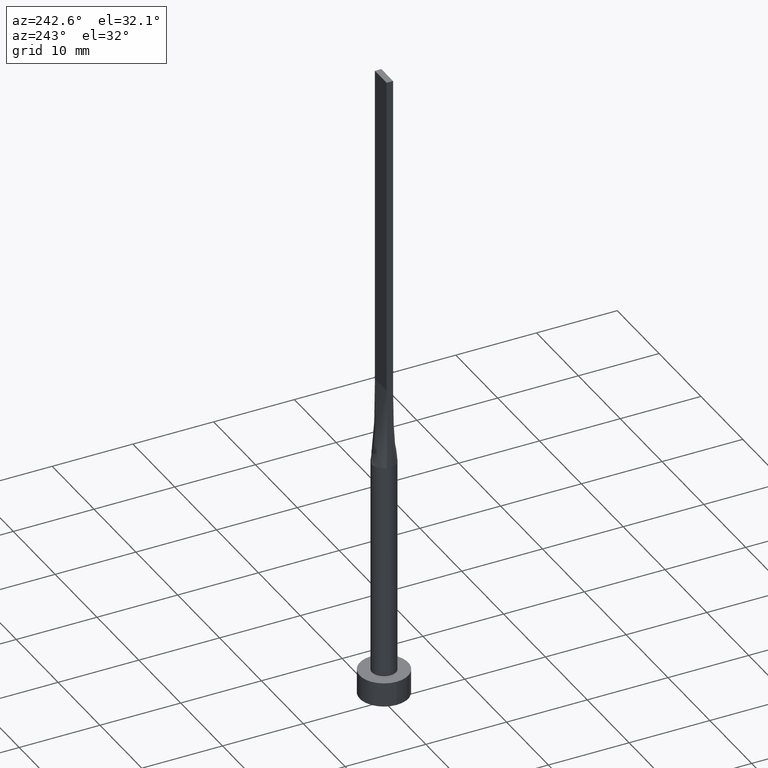
[diagram: clean part render]
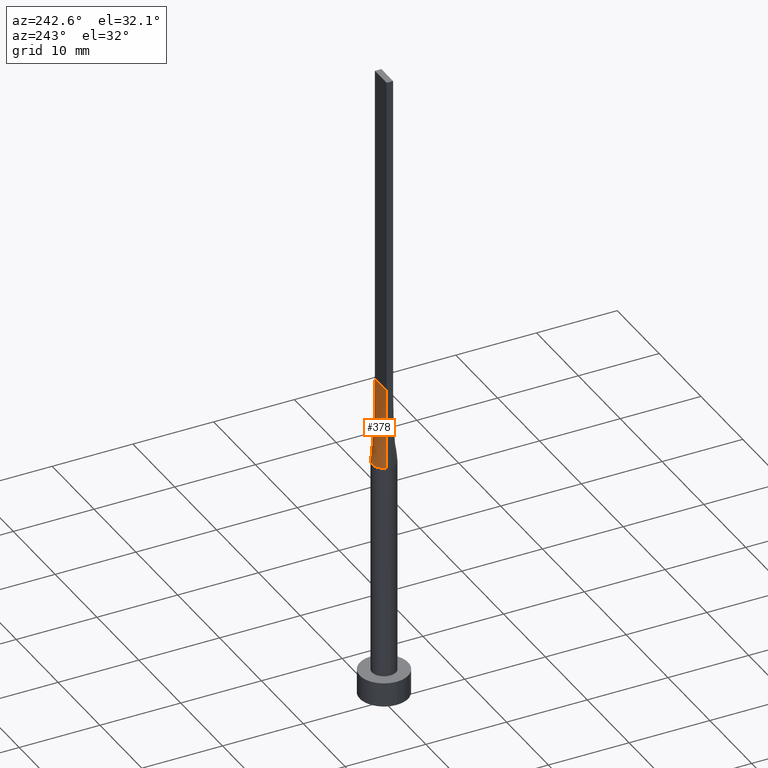
[diagram: same view with one face highlighted and labeled with its STEP entity id]
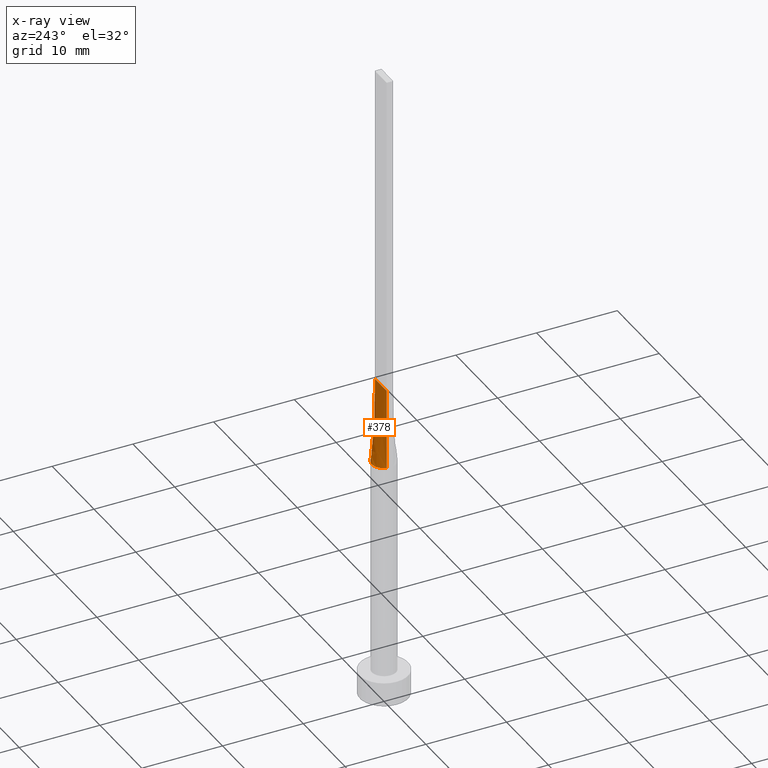
[diagram: x-ray of the same camera — body ghosted, the highlighted face saturated]
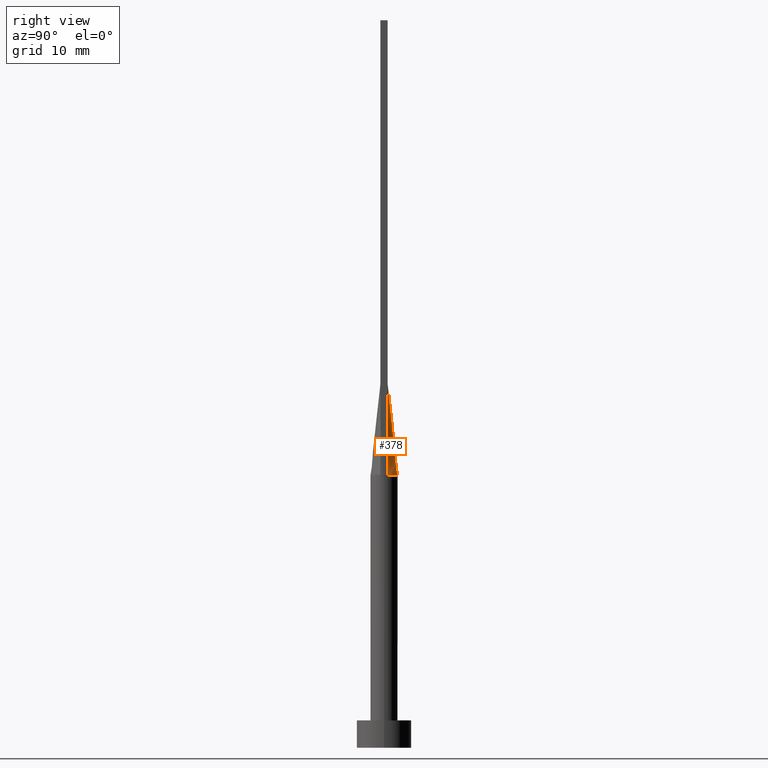
[diagram: same view with one face highlighted and labeled with its STEP entity id]
A machine part, auxiliary view. The second image highlights one B-rep face of the part: STEP entity #378.
The next image is the same camera in x-ray: the body ghosted, the highlighted face saturated — about 0% of this face is hidden behind the body in this view.
A second angle (right view) of the same face is appended — the face is thin or edge-on in the first view.
In plain terms, the highlighted face is a freeform B-spline surface patch.
Its self-contained STEP definition (entity closure, byte-faithful):
#2 = CARTESIAN_POINT ( 'NONE',  ( -1.421142960730617189, 0.4060408459230336331, 35.00000000000000000 ) ) ;
#18 = LINE ( 'NONE', #427, #317 ) ;
#21 = CARTESIAN_POINT ( 'NONE',  ( 0.5833333333333330373, 0.4000000000000001887, 39.99999999999999289 ) ) ;
#24 = CARTESIAN_POINT ( 'NONE',  ( 1.442285921461234910, 0.4120816918460671330, 30.00000000000000000 ) ) ;
#26 = CARTESIAN_POINT ( 'NONE',  ( -1.442387148345315895, 0.4121110244020492197, 30.00000000000000000 ) ) ;
#27 = FACE_OUTER_BOUND ( 'NONE', #491, .T. ) ;
#31 = EDGE_CURVE ( 'NONE', #308, #182, #261, .T. ) ;
#33 = CARTESIAN_POINT ( 'NONE',  ( -0.3767059690781846548, 1.463302066271692015, 30.00000000000000000 ) ) ;
#35 = CARTESIAN_POINT ( 'NONE',  ( 0.1885753531885901724, 1.500000000000000666, 30.00000000000000711 ) ) ;
#60 = CARTESIAN_POINT ( 'NONE',  ( 0.3767059690781852654, 1.463302066271692015, 30.00000000000000000 ) ) ;
#67 = CARTESIAN_POINT ( 'NONE',  ( -0.7158926189626803049, 1.330660769095148410, 30.00000000000000355 ) ) ;
#77 = CARTESIAN_POINT ( 'NONE',  ( -0.7158926189626803049, 1.330660769095148410, 30.00000000000000355 ) ) ;
#89 = ORIENTED_EDGE ( 'NONE', *, *, #107, .F. ) ;
#104 = ORIENTED_EDGE ( 'NONE', *, *, #31, .T. ) ;
#105 = CARTESIAN_POINT ( 'NONE',  ( 1.166666666666666075, 0.4000000000000001332, 39.99999999999999289 ) ) ;
#107 = EDGE_CURVE ( 'NONE', #308, #487, #382, .T. ) ;
#108 = CARTESIAN_POINT ( 'NONE',  ( 1.283333333333332993, 0.4000000000000001887, 39.99999999999999289 ) ) ;
#109 = CARTESIAN_POINT ( 'NONE',  ( 1.399999999999999689, 0.4000000000000002442, 40.00000000000000000 ) ) ;
#110 = CARTESIAN_POINT ( 'NONE',  ( -0.3767059690781846548, 1.463302066271692015, 30.00000000000000000 ) ) ;
#124 = CARTESIAN_POINT ( 'NONE',  ( 1.212111761082483197, 0.8950936653899574935, 30.00000000000000711 ) ) ;
#149 = LINE ( 'NONE', #2, #532 ) ;
#153 = CARTESIAN_POINT ( 'NONE',  ( -0.5833333333333332593, 0.4000000000000001887, 39.99999999999999289 ) ) ;
#156 = CARTESIAN_POINT ( 'NONE',  ( -0.1166666666666663771, 0.4000000000000001887, 39.99999999999999289 ) ) ;
#163 = CARTESIAN_POINT ( 'NONE',  ( -1.359280768448767329, 0.6502025712814717417, 30.00000000000001066 ) ) ;
#177 = DIRECTION ( 'NONE',  ( 0.004228551254826029733, -0.001208157501378838471, 0.9999903298081123104 ) ) ;
#182 = VERTEX_POINT ( 'NONE', #324 ) ;
#192 = CARTESIAN_POINT ( 'NONE',  ( -1.359280768448767329, 0.6502025712814717417, 30.00000000000001066 ) ) ;
#194 = CARTESIAN_POINT ( 'NONE',  ( 0.1166666666666670016, 0.4000000000000001887, 39.99999999999999289 ) ) ;
#204 = DIRECTION ( 'NONE',  ( -1.000000000000000000, -0.000000000000000000, -0.000000000000000000 ) ) ;
#218 = CARTESIAN_POINT ( 'NONE',  ( 1.409267053536706671, 0.5276477295819161917, 30.00000000000000000 ) ) ;
#221 = CARTESIAN_POINT ( 'NONE',  ( -1.166666666666666519, 0.4000000000000002442, 39.99999999999999289 ) ) ;
#224 = CARTESIAN_POINT ( 'NONE',  ( -1.409267053536706671, 0.5276477295819163027, 30.00000000000000711 ) ) ;
#228 = CARTESIAN_POINT ( 'NONE',  ( -1.283333333333333215, 0.4000000000000002442, 39.99999999999999289 ) ) ;
#229 = CARTESIAN_POINT ( 'NONE',  ( 1.442362338805188937, 0.4121038472597355895, 30.00000000000000000 ) ) ;
#235 = VECTOR ( 'NONE', #564, 1000.000000000000000 ) ;
#239 = CARTESIAN_POINT ( 'NONE',  ( 1.359280768448766663, 0.6502025712814714087, 29.99999999999999289 ) ) ;
#241 = B_SPLINE_SURFACE_WITH_KNOTS ( 'NONE', 3, 1, ( 
 ( #24, #384 ),
 ( #472, #108 ),
 ( #239, #105 ),
 ( #559, #286 ),
 ( #562, #425 ),
 ( #468, #21 ),
 ( #337, #290 ),
 ( #60, #335 ),
 ( #515, #194 ),
 ( #379, #156 ),
 ( #110, #512 ),
 ( #67, #555 ),
 ( #422, #153 ),
 ( #246, #415 ),
 ( #276, #318 ),
 ( #192, #221 ),
 ( #224, #228 ),
 ( #551, #497 ) ),
 .UNSPECIFIED., .F., .F., .F.,
 ( 4, 2, 2, 2, 2, 2, 2, 2, 4 ),
 ( 2, 2 ),
 ( 0.000000000000000000, 0.1250000000000000833, 0.2500000000000001665, 0.3750000000000001110, 0.5000000000000001110, 0.6250000000000002220, 0.7500000000000001110, 0.8750000000000001110, 1.000000000000000000 ),
 ( 0.000000000000000000, 1.000000000000000000 ),
 .UNSPECIFIED. ) ;
#246 = CARTESIAN_POINT ( 'NONE',  ( -1.114527776139989212, 1.017390422009414319, 30.00000000000000000 ) ) ;
#255 = CARTESIAN_POINT ( 'NONE',  ( -0.8665786268839184014, 1.235433898681765896, 30.00000000000000355 ) ) ;
#259 = CARTESIAN_POINT ( 'NONE',  ( -1.409267053536706671, 0.5276477295819163027, 30.00000000000000711 ) ) ;
#261 = B_SPLINE_CURVE_WITH_KNOTS ( 'NONE', 3,
 ( #229, #218, #400, #124, #482, #346, #433, #391, #35, #297, #33, #77, #255, #521, #529, #163, #259, #26 ),
 .UNSPECIFIED., .F., .F.,
 ( 4, 2, 2, 2, 2, 2, 2, 2, 4 ),
 ( 0.000000000000000000, 0.1250000000000000833, 0.2500000000000001665, 0.3750000000000001110, 0.5000000000000001110, 0.6250000000000002220, 0.7500000000000001110, 0.8750000000000001110, 1.000000000000000000 ),
 .UNSPECIFIED. ) ;
#276 = CARTESIAN_POINT ( 'NONE',  ( -1.212111761082482975, 0.8950936653899578266, 30.00000000000000355 ) ) ;
#286 = CARTESIAN_POINT ( 'NONE',  ( 0.9333333333333329040, 0.4000000000000001332, 39.99999999999999289 ) ) ;
#290 = CARTESIAN_POINT ( 'NONE',  ( 0.4666666666666665630, 0.4000000000000001887, 39.99999999999999289 ) ) ;
#297 = CARTESIAN_POINT ( 'NONE',  ( -0.1885753531885899226, 1.500000000000000888, 30.00000000000000711 ) ) ;
#302 = CARTESIAN_POINT ( 'NONE',  ( 1.421142960730617189, 0.4060408459230337996, 35.00000000000000000 ) ) ;
#308 = VERTEX_POINT ( 'NONE', #359 ) ;
#317 = VECTOR ( 'NONE', #204, 1000.000000000000000 ) ;
#318 = CARTESIAN_POINT ( 'NONE',  ( -0.9333333333333331261, 0.4000000000000001887, 39.99999999999999289 ) ) ;
#324 = CARTESIAN_POINT ( 'NONE',  ( -1.442387148345315895, 0.4121110244020492197, 30.00000000000000000 ) ) ;
#335 = CARTESIAN_POINT ( 'NONE',  ( 0.2333333333333335313, 0.4000000000000001887, 39.99999999999999289 ) ) ;
#337 = CARTESIAN_POINT ( 'NONE',  ( 0.7158926189626808601, 1.330660769095147966, 29.99999999999999645 ) ) ;
#342 = EDGE_CURVE ( 'NONE', #487, #412, #18, .T. ) ;
#346 = CARTESIAN_POINT ( 'NONE',  ( 0.8665786268839186235, 1.235433898681765008, 29.99999999999999289 ) ) ;
#357 = CARTESIAN_POINT ( 'NONE',  ( -1.399999999999999689, 0.4000000000000002442, 40.00000000000000000 ) ) ;
#359 = CARTESIAN_POINT ( 'NONE',  ( 1.442362338805188937, 0.4121038472597355895, 30.00000000000000000 ) ) ;
#366 = ORIENTED_EDGE ( 'NONE', *, *, #342, .F. ) ;
#378 = ADVANCED_FACE ( 'NONE', ( #27 ), #241, .T. ) ;
#379 = CARTESIAN_POINT ( 'NONE',  ( -0.1885753531885899226, 1.500000000000000888, 30.00000000000000711 ) ) ;
#382 = LINE ( 'NONE', #302, #235 ) ;
#384 = CARTESIAN_POINT ( 'NONE',  ( 1.399999999999999689, 0.4000000000000002442, 40.00000000000000000 ) ) ;
#391 = CARTESIAN_POINT ( 'NONE',  ( 0.3767059690781852654, 1.463302066271692015, 30.00000000000000000 ) ) ;
#399 = EDGE_CURVE ( 'NONE', #182, #412, #149, .T. ) ;
#400 = CARTESIAN_POINT ( 'NONE',  ( 1.359280768448766663, 0.6502025712814714087, 29.99999999999999289 ) ) ;
#412 = VERTEX_POINT ( 'NONE', #357 ) ;
#415 = CARTESIAN_POINT ( 'NONE',  ( -0.8166666666666665408, 0.4000000000000001887, 39.99999999999999289 ) ) ;
#422 = CARTESIAN_POINT ( 'NONE',  ( -0.8665786268839184014, 1.235433898681765896, 30.00000000000000355 ) ) ;
#425 = CARTESIAN_POINT ( 'NONE',  ( 0.8166666666666662078, 0.4000000000000001887, 39.99999999999999289 ) ) ;
#427 = CARTESIAN_POINT ( 'NONE',  ( -1.399999999999999689, 0.4000000000000002442, 40.00000000000000000 ) ) ;
#433 = CARTESIAN_POINT ( 'NONE',  ( 0.7158926189626808601, 1.330660769095147966, 29.99999999999999645 ) ) ;
#468 = CARTESIAN_POINT ( 'NONE',  ( 0.8665786268839186235, 1.235433898681765008, 29.99999999999999289 ) ) ;
#472 = CARTESIAN_POINT ( 'NONE',  ( 1.409267053536706671, 0.5276477295819161917, 30.00000000000000000 ) ) ;
#482 = CARTESIAN_POINT ( 'NONE',  ( 1.114527776139990101, 1.017390422009413431, 29.99999999999999645 ) ) ;
#487 = VERTEX_POINT ( 'NONE', #109 ) ;
#491 = EDGE_LOOP ( 'NONE', ( #104, #505, #366, #89 ) ) ;
#497 = CARTESIAN_POINT ( 'NONE',  ( -1.399999999999999689, 0.4000000000000002442, 40.00000000000000000 ) ) ;
#505 = ORIENTED_EDGE ( 'NONE', *, *, #399, .T. ) ;
#512 = CARTESIAN_POINT ( 'NONE',  ( -0.2333333333333332815, 0.4000000000000001887, 39.99999999999999289 ) ) ;
#515 = CARTESIAN_POINT ( 'NONE',  ( 0.1885753531885901724, 1.500000000000000666, 30.00000000000000711 ) ) ;
#521 = CARTESIAN_POINT ( 'NONE',  ( -1.114527776139989212, 1.017390422009414319, 30.00000000000000000 ) ) ;
#529 = CARTESIAN_POINT ( 'NONE',  ( -1.212111761082482975, 0.8950936653899578266, 30.00000000000000355 ) ) ;
#532 = VECTOR ( 'NONE', #177, 1000.000000000000000 ) ;
#551 = CARTESIAN_POINT ( 'NONE',  ( -1.442285921461234688, 0.4120816918460670775, 30.00000000000000000 ) ) ;
#555 = CARTESIAN_POINT ( 'NONE',  ( -0.4666666666666666741, 0.4000000000000001887, 39.99999999999999289 ) ) ;
#559 = CARTESIAN_POINT ( 'NONE',  ( 1.212111761082483197, 0.8950936653899574935, 30.00000000000000711 ) ) ;
#562 = CARTESIAN_POINT ( 'NONE',  ( 1.114527776139990101, 1.017390422009413431, 29.99999999999999645 ) ) ;
#564 = DIRECTION ( 'NONE',  ( -0.004228551254826051417, -0.001208157501378865576, 0.9999903298081123104 ) ) ;